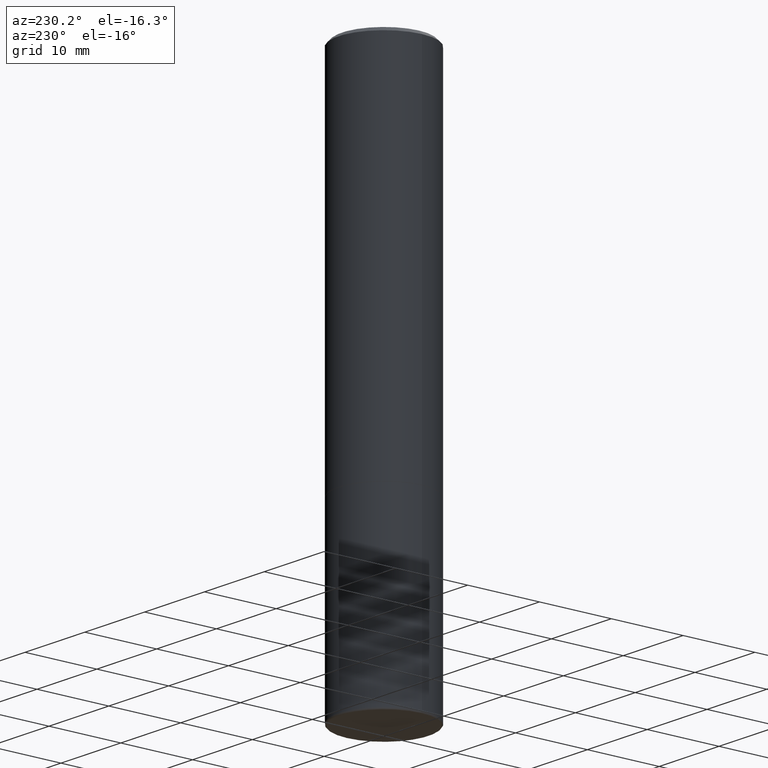
[diagram: clean part render]
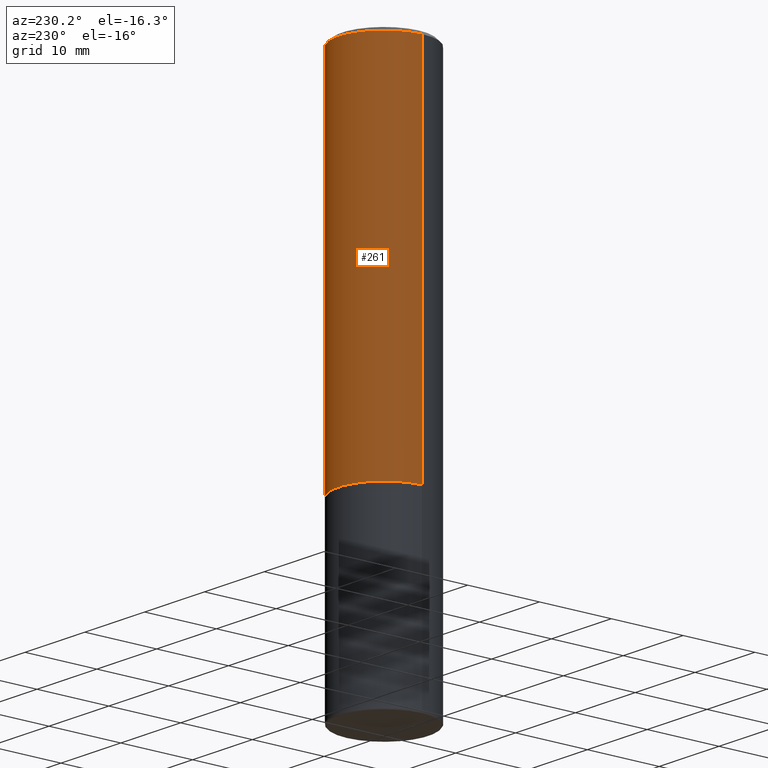
[diagram: same view with one face highlighted and labeled with its STEP entity id]
A machine part, auxiliary view. The second image highlights one B-rep face of the part: STEP entity #261.
In plain terms, the highlighted cylindrical surface (partial cylindrical patch) has radius 6.35 mm, axis along (-0, 0, 1).
Its self-contained STEP definition (entity closure, byte-faithful):
#31 = CARTESIAN_POINT ( 'NONE',  ( -0.2500000000000000000, 1.675911042644703577E-15, -0.02000000000000005593 ) ) ;
#34 = DIRECTION ( 'NONE',  ( 1.000000000000000000, -6.982962677686266711E-15, 0.000000000000000000 ) ) ;
#42 = EDGE_CURVE ( 'NONE', #319, #191, #365, .T. ) ;
#47 = LINE ( 'NONE', #235, #115 ) ;
#61 = CYLINDRICAL_SURFACE ( 'NONE', #188, 0.2500000000000001110 ) ;
#74 = LINE ( 'NONE', #147, #102 ) ;
#77 = EDGE_CURVE ( 'NONE', #160, #191, #74, .T. ) ;
#83 = ORIENTED_EDGE ( 'NONE', *, *, #77, .T. ) ;
#84 = FACE_OUTER_BOUND ( 'NONE', #241, .T. ) ;
#86 = CIRCLE ( 'NONE', #144, 0.2500000000000002220 ) ;
#95 = DIRECTION ( 'NONE',  ( -2.445468806185136597E-29, 3.491481338843145583E-15, 1.000000000000000000 ) ) ;
#102 = VECTOR ( 'NONE', #400, 39.37007874015748143 ) ;
#115 = VECTOR ( 'NONE', #143, 39.37007874015748143 ) ;
#119 = CARTESIAN_POINT ( 'NONE',  ( 0.2500000000000000000, -1.784954126219746189E-15, -0.02000000000000005593 ) ) ;
#120 = EDGE_CURVE ( 'NONE', #127, #319, #47, .T. ) ;
#121 = ORIENTED_EDGE ( 'NONE', *, *, #120, .F. ) ;
#127 = VERTEX_POINT ( 'NONE', #175 ) ;
#143 = DIRECTION ( 'NONE',  ( -2.445468806185136877E-29, 3.491481338843145188E-15, 1.000000000000000000 ) ) ;
#144 = AXIS2_PLACEMENT_3D ( 'NONE', #417, #95, #411 ) ;
#147 = CARTESIAN_POINT ( 'NONE',  ( -0.2500000000000001110, 1.776356839400251254E-15, -1.229733772563727146E-29 ) ) ;
#160 = VERTEX_POINT ( 'NONE', #369 ) ;
#175 = CARTESIAN_POINT ( 'NONE',  ( 0.2500000000000002220, -8.725211865769017202E-15, -1.999000000000000110 ) ) ;
#177 = DIRECTION ( 'NONE',  ( 1.000000000000000000, -6.982962677686267499E-15, 4.876176775795936353E-29 ) ) ;
#188 = AXIS2_PLACEMENT_3D ( 'NONE', #285, #190, #177 ) ;
#190 = DIRECTION ( 'NONE',  ( -2.445468806185136597E-29, 3.491481338843145583E-15, 1.000000000000000000 ) ) ;
#191 = VERTEX_POINT ( 'NONE', #31 ) ;
#216 = ORIENTED_EDGE ( 'NONE', *, *, #42, .F. ) ;
#235 = CARTESIAN_POINT ( 'NONE',  ( 0.2500000000000001110, -1.745740669421567664E-15, 1.219044193948984649E-29 ) ) ;
#241 = EDGE_LOOP ( 'NONE', ( #316, #83, #216, #121 ) ) ;
#252 = EDGE_CURVE ( 'NONE', #127, #160, #86, .T. ) ;
#256 = CARTESIAN_POINT ( 'NONE',  ( 4.890937612370287172E-31, -6.982962677686310098E-17, -0.02000000000000005593 ) ) ;
#261 = ADVANCED_FACE ( 'NONE', ( #84 ), #61, .T. ) ;
#285 = CARTESIAN_POINT ( 'NONE',  ( 0.000000000000000000, 0.000000000000000000, 0.000000000000000000 ) ) ;
#316 = ORIENTED_EDGE ( 'NONE', *, *, #252, .T. ) ;
#319 = VERTEX_POINT ( 'NONE', #119 ) ;
#324 = DIRECTION ( 'NONE',  ( -2.445468806185136597E-29, 3.491481338843145583E-15, 1.000000000000000000 ) ) ;
#331 = AXIS2_PLACEMENT_3D ( 'NONE', #256, #324, #34 ) ;
#365 = CIRCLE ( 'NONE', #331, 0.2500000000000000000 ) ;
#369 = CARTESIAN_POINT ( 'NONE',  ( -0.2500000000000002220, -1.748293572161901516E-15, -1.999000000000000110 ) ) ;
#400 = DIRECTION ( 'NONE',  ( -2.445468806185136877E-29, 3.491481338843145188E-15, 1.000000000000000000 ) ) ;
#411 = DIRECTION ( 'NONE',  ( 1.000000000000000000, -6.982962677686268288E-15, 0.000000000000000000 ) ) ;
#417 = CARTESIAN_POINT ( 'NONE',  ( 4.888492143564088712E-29, -6.979471196347448158E-15, -1.999000000000000110 ) ) ;